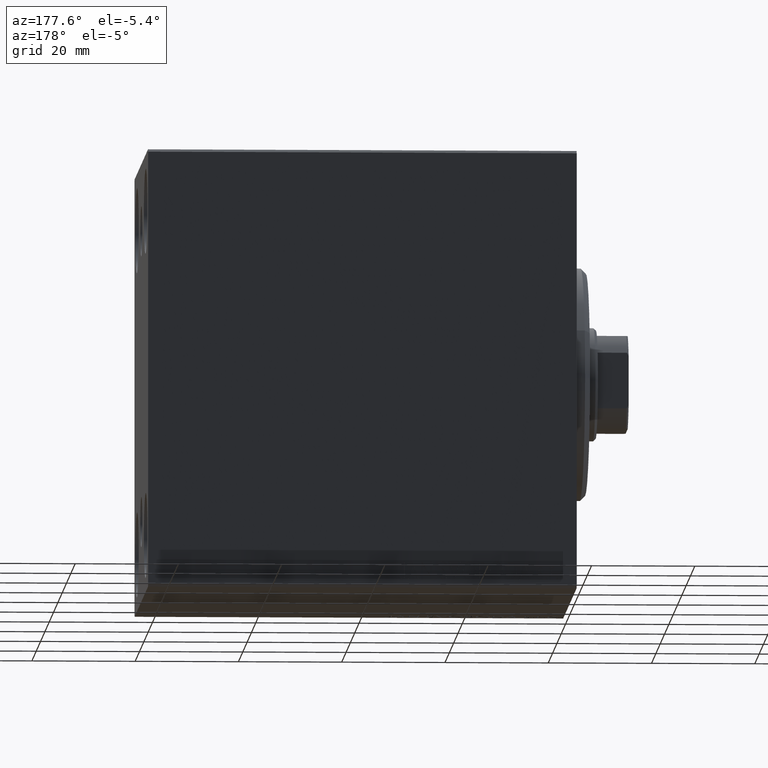
[diagram: clean part render]
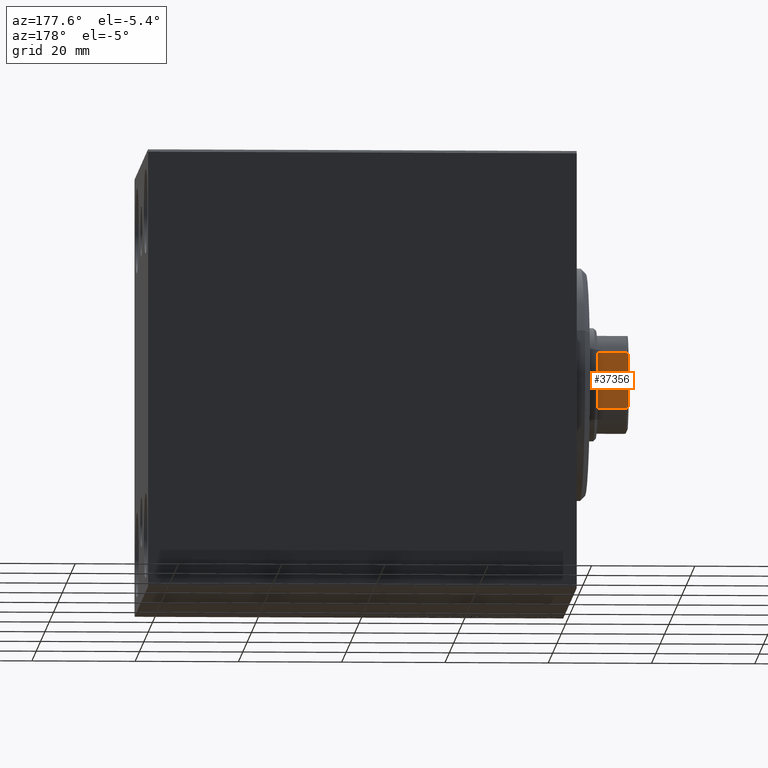
[diagram: same view with one face highlighted and labeled with its STEP entity id]
A machine part, auxiliary view. The second image highlights one B-rep face of the part: STEP entity #37356.
In plain terms, the highlighted planar face has unit normal (0, -1, 0).
Its self-contained STEP definition (entity closure, byte-faithful):
#259 = ORIENTED_EDGE ( 'NONE', *, *, #26764, .T. ) ;
#919 = DIRECTION ( 'NONE',  ( -0.000000000000000000, -0.000000000000000000, 1.000000000000000000 ) ) ;
#1964 = VECTOR ( 'NONE', #36262, 1000.000000000000000 ) ;
#2201 = LINE ( 'NONE', #2632, #1964 ) ;
#2632 = CARTESIAN_POINT ( 'NONE',  ( -9.000000000000001776, 8.999999999999998224, 55.99999999999999289 ) ) ;
#3260 = CARTESIAN_POINT ( 'NONE',  ( -4.799999999999990941, 8.999999999999998224, 61.99999999999999289 ) ) ;
#4874 = LINE ( 'NONE', #11071, #5943 ) ;
#5468 = CARTESIAN_POINT ( 'NONE',  ( -9.000000000000001776, 8.999999999999998224, 61.99999999999999289 ) ) ;
#5651 = VERTEX_POINT ( 'NONE', #43481 ) ;
#5943 = VECTOR ( 'NONE', #919, 1000.000000000000000 ) ;
#5949 = ORIENTED_EDGE ( 'NONE', *, *, #27992, .F. ) ;
#6130 = CARTESIAN_POINT ( 'NONE',  ( -5.004607318780300851, 8.999999999999998224, 61.90371420292691340 ) ) ;
#6216 = FACE_OUTER_BOUND ( 'NONE', #41455, .T. ) ;
#7765 = CARTESIAN_POINT ( 'NONE',  ( 5.207299490555480581, 8.999999999999998224, 61.80354495430068340 ) ) ;
#9755 = DIRECTION ( 'NONE',  ( 0.000000000000000000, -1.000000000000000000, 0.000000000000000000 ) ) ;
#10578 = VERTEX_POINT ( 'NONE', #12905 ) ;
#11071 = CARTESIAN_POINT ( 'NONE',  ( -5.408326913195988794, 8.999999999999998224, -0.001000000000001000089 ) ) ;
#12905 = CARTESIAN_POINT ( 'NONE',  ( -5.408326913195999452, 8.999999999999998224, 56.00000000000000000 ) ) ;
#13387 = CARTESIAN_POINT ( 'NONE',  ( 5.408326913195989682, 8.999999999999998224, -0.001000000000001000089 ) ) ;
#14995 = DIRECTION ( 'NONE',  ( -1.000000000000000000, -0.000000000000000000, -0.000000000000000000 ) ) ;
#16531 = CARTESIAN_POINT ( 'NONE',  ( -5.207299490555470811, 8.999999999999998224, 61.80354495430065498 ) ) ;
#17075 = EDGE_CURVE ( 'NONE', #10578, #39726, #4874, .T. ) ;
#17362 = LINE ( 'NONE', #13387, #30934 ) ;
#19292 = CARTESIAN_POINT ( 'NONE',  ( -9.000000000000001776, 8.999999999999998224, 61.99999999999999289 ) ) ;
#20664 = DIRECTION ( 'NONE',  ( -0.000000000000000000, -0.000000000000000000, 1.000000000000000000 ) ) ;
#21257 = CARTESIAN_POINT ( 'NONE',  ( 5.408326913195989682, 8.999999999999998224, 61.69999999999999574 ) ) ;
#21475 = EDGE_CURVE ( 'NONE', #30153, #5651, #31590, .T. ) ;
#23065 = CARTESIAN_POINT ( 'NONE',  ( 5.408326913195989682, 8.999999999999998224, 56.00000000000000000 ) ) ;
#23222 = AXIS2_PLACEMENT_3D ( 'NONE', #19292, #9755, #39202 ) ;
#24059 = ORIENTED_EDGE ( 'NONE', *, *, #17075, .T. ) ;
#25509 = VERTEX_POINT ( 'NONE', #39269 ) ;
#25706 = PLANE ( 'NONE',  #23222 ) ;
#26764 = EDGE_CURVE ( 'NONE', #30153, #25509, #29080, .T. ) ;
#27895 = CARTESIAN_POINT ( 'NONE',  ( 4.800000000000012257, 8.999999999999998224, 61.99999999999999289 ) ) ;
#27992 = EDGE_CURVE ( 'NONE', #34515, #25509, #17362, .T. ) ;
#29080 = B_SPLINE_CURVE_WITH_KNOTS ( 'NONE', 3,
 ( #27895, #38080, #7765, #21257 ),
 .UNSPECIFIED., .F., .F.,
 ( 4, 4 ),
 ( 0.000000000000000000, 0.0006782784334759155761 ),
 .UNSPECIFIED. ) ;
#30060 = VECTOR ( 'NONE', #14995, 1000.000000000000000 ) ;
#30153 = VERTEX_POINT ( 'NONE', #32205 ) ;
#30934 = VECTOR ( 'NONE', #20664, 1000.000000000000000 ) ;
#31590 = LINE ( 'NONE', #5468, #30060 ) ;
#31676 = EDGE_CURVE ( 'NONE', #34515, #10578, #2201, .T. ) ;
#32205 = CARTESIAN_POINT ( 'NONE',  ( 4.800000000000012257, 8.999999999999998224, 61.99999999999999289 ) ) ;
#32226 = ORIENTED_EDGE ( 'NONE', *, *, #32425, .T. ) ;
#32425 = EDGE_CURVE ( 'NONE', #39726, #5651, #38774, .T. ) ;
#32830 = ORIENTED_EDGE ( 'NONE', *, *, #21475, .F. ) ;
#33559 = CARTESIAN_POINT ( 'NONE',  ( -5.408326913195988794, 8.999999999999998224, 61.69999999999996732 ) ) ;
#34515 = VERTEX_POINT ( 'NONE', #23065 ) ;
#36262 = DIRECTION ( 'NONE',  ( -1.000000000000000000, -0.000000000000000000, -0.000000000000000000 ) ) ;
#37356 = ADVANCED_FACE ( 'NONE', ( #6216 ), #25706, .F. ) ;
#37699 = ORIENTED_EDGE ( 'NONE', *, *, #31676, .T. ) ;
#38080 = CARTESIAN_POINT ( 'NONE',  ( 5.004607318780309733, 8.999999999999998224, 61.90371420292691340 ) ) ;
#38774 = B_SPLINE_CURVE_WITH_KNOTS ( 'NONE', 3,
 ( #33559, #16531, #6130, #3260 ),
 .UNSPECIFIED., .F., .F.,
 ( 4, 4 ),
 ( 0.000000000000000000, 0.0006782784334759471264 ),
 .UNSPECIFIED. ) ;
#39202 = DIRECTION ( 'NONE',  ( 0.000000000000000000, -0.000000000000000000, -1.000000000000000000 ) ) ;
#39269 = CARTESIAN_POINT ( 'NONE',  ( 5.408326913195989682, 8.999999999999998224, 61.69999999999999574 ) ) ;
#39726 = VERTEX_POINT ( 'NONE', #41047 ) ;
#41047 = CARTESIAN_POINT ( 'NONE',  ( -5.408326913195988794, 8.999999999999998224, 61.69999999999996732 ) ) ;
#41455 = EDGE_LOOP ( 'NONE', ( #32830, #259, #5949, #37699, #24059, #32226 ) ) ;
#43481 = CARTESIAN_POINT ( 'NONE',  ( -4.799999999999990941, 8.999999999999998224, 61.99999999999999289 ) ) ;